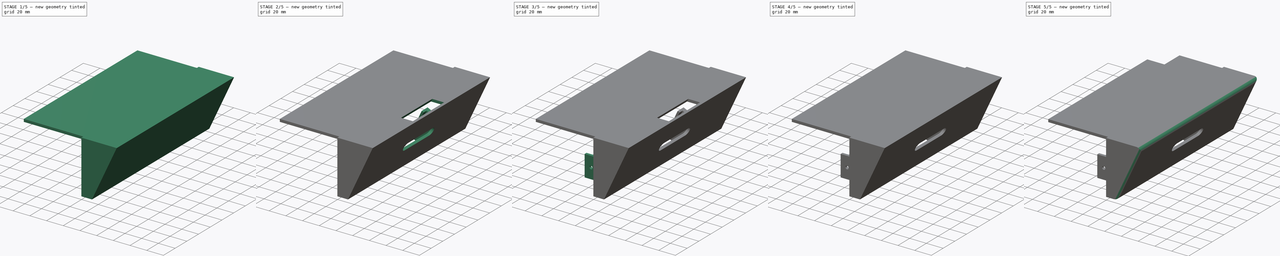
[diagram: build sequence overview — one tinted view per stage of 5, left to right]
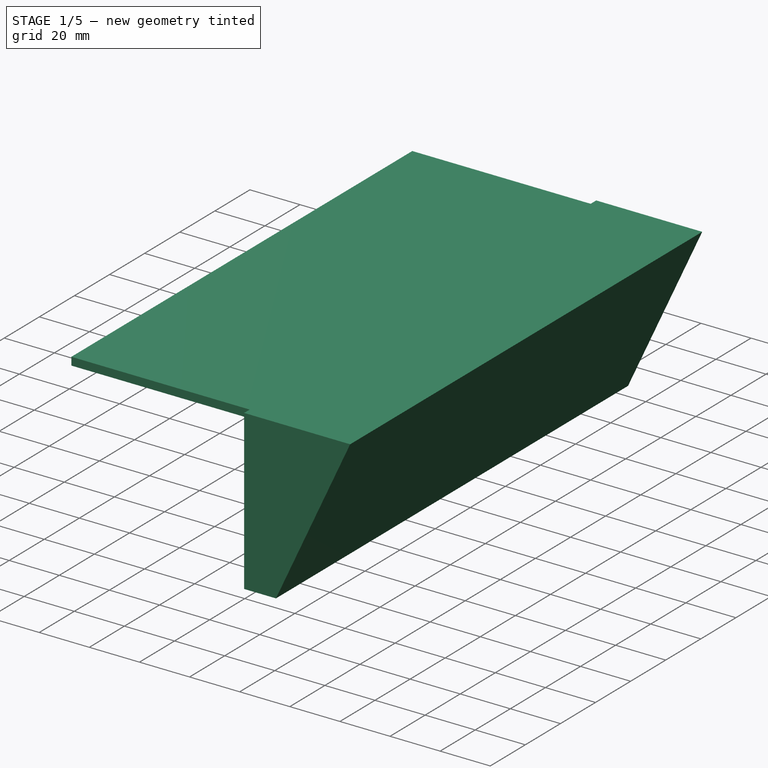
[diagram: stage 1 of 5 — iso view after this stage's code; geometry added in this stage tinted green]
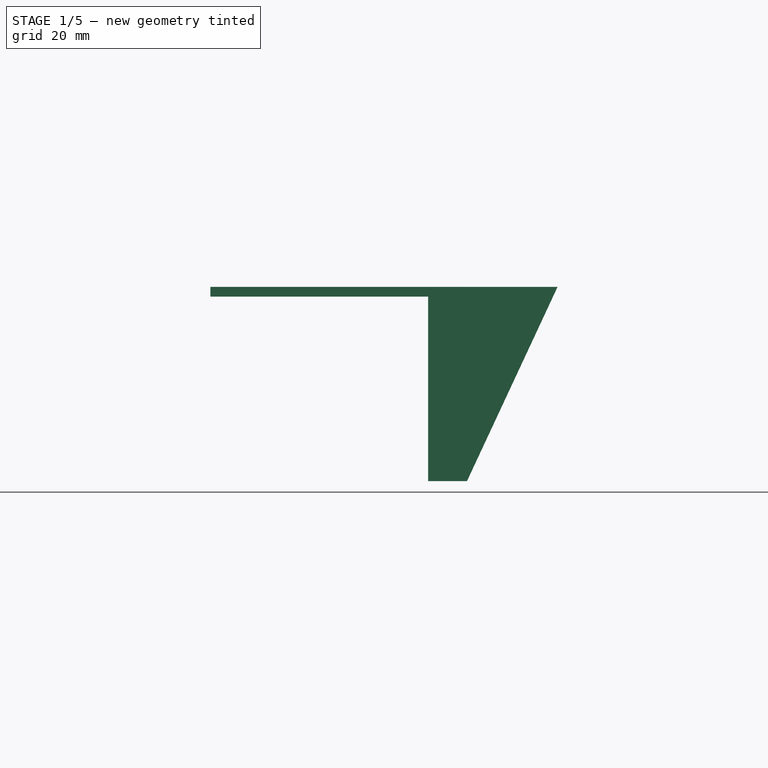
[diagram: stage 1 of 5 — front view after this stage's code; geometry added in this stage tinted green]
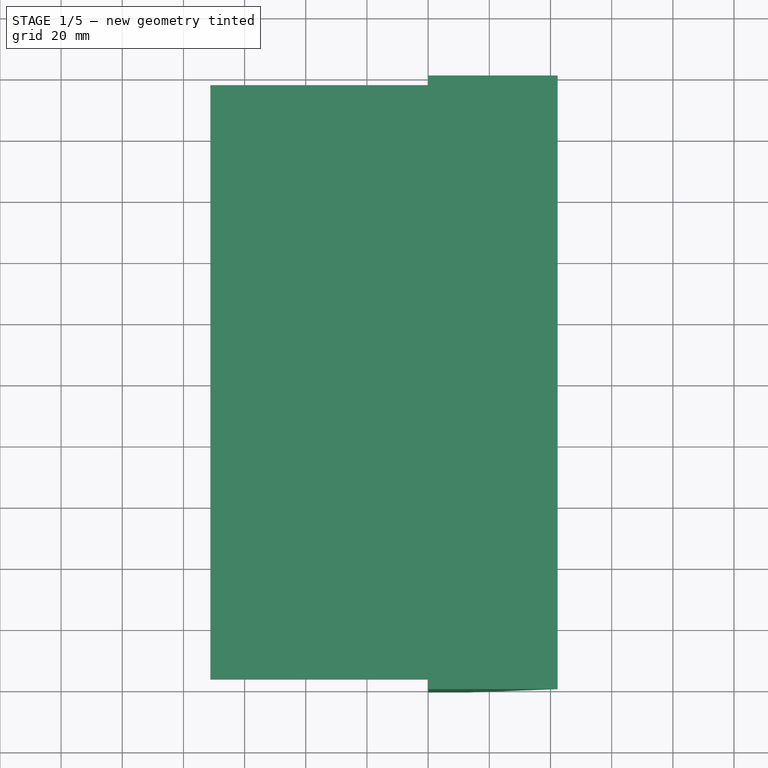
[diagram: stage 1 of 5 — top view after this stage's code; geometry added in this stage tinted green]
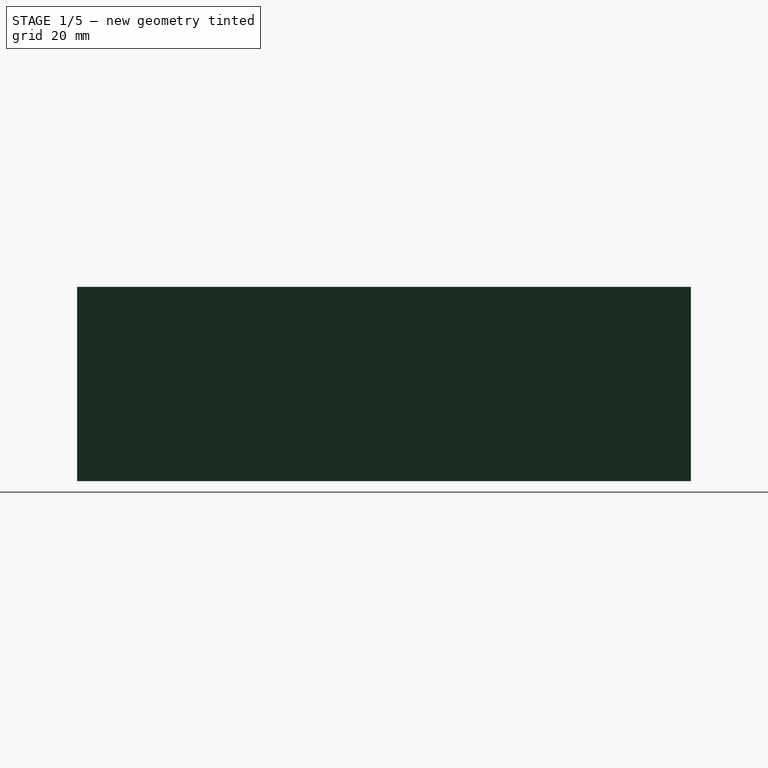
[diagram: stage 1 of 5 — right view after this stage's code; geometry added in this stage tinted green]
FCSTD DOCUMENT  (FreeCAD 0.20R27936 (Git))
Label: Bonnet
License: All rights reserved
LicenseURL: http://en.wikipedia.org/wiki/All_rights_reserved
objects: Sketcher::SketchObject×12, PartDesign::Pad×7, PartDesign::Pocket×5, PartDesign::Chamfer×3, PartDesign::Thickness×1, PartDesign::Fillet×1, PartDesign::Body×1
note: 47 computed .brp shape members not serialized (recipe doc carries the construction recipe); baked Part::Feature solids carry a one-line shape summary decoded from their .brp

FEATURE [Sketcher::SketchObject] Sketch
  FullyConstrained = true
  MapMode = 5
  Placement = pos=(0,0,0) rot=(1,0,0;1.5708rad)
  Support = -> [XZ_Plane]
  sketch-geometry (4):
    g0: LineSegment StartX=0 StartY=0 StartZ=0 EndX=12.7 EndY=0 EndZ=0
    g1: LineSegment StartX=12.7 StartY=0 StartZ=0 EndX=42.3105 EndY=63.5 EndZ=0
    g2: LineSegment StartX=42.3105 StartY=63.5 StartZ=0 EndX=0 EndY=63.5 EndZ=0
    g3: LineSegment StartX=0 StartY=63.5 StartZ=0 EndX=0 EndY=0 EndZ=0
  constraints (11):
    c: Coincident(g0,g-1)
    c: Horizontal(g0)
    c: Coincident(g1,g0)
    c: Coincident(g2,g1)
    c: PointOnObject(g2,g-2)
    c: Horizontal(g2)
    c: Coincident(g3,g2)
    c: Coincident(g3,g0)
    c: Angle(g1,g-1) = 2.00713
    c: Distance(g0) = 12.7
    c: Distance(g3) = 63.5
FEATURE [PartDesign::Pad] Pad
  Direction = (0,-1,-2e-16)
  Length = 200.66
  Length2 = 10.0076
  Midplane = true
  Placement = pos=(0,0,0) rot=(1,0,0;1.5708rad)
  Profile = -> Sketch
  ReferenceAxis = -> Sketch [N_Axis]
  Type = 0
FEATURE [PartDesign::Thickness] Thickness
  Base = -> Pad [Face4]
  BaseFeature = -> Pad
  Intersection = false
  Join = 0
  Mode = 0
  Reversed = true
  SupportTransform = false
  Value = 3.175
FEATURE [Sketcher::SketchObject] Sketch001
  ExternalGeometry = -> [Thickness]
  FullyConstrained = true
  MapMode = 5
  Placement = pos=(0,0,0) rot=(0.57735,-0.57735,-0.57735;2.0944rad)
  Support = -> [Thickness]
  sketch-geometry (4):
    g0: LineSegment StartX=-97.155 StartY=60.325 StartZ=0 EndX=97.155 EndY=60.325 EndZ=0
    g1: LineSegment StartX=97.155 StartY=60.325 StartZ=0 EndX=97.155 EndY=63.5 EndZ=0
    g2: LineSegment StartX=97.155 StartY=63.5 StartZ=0 EndX=-97.155 EndY=63.5 EndZ=0
    g3: LineSegment StartX=-97.155 StartY=63.5 StartZ=0 EndX=-97.155 EndY=60.325 EndZ=0
  constraints (10):
    c: Coincident(g0,g1)
    c: Coincident(g1,g2)
    c: Coincident(g2,g3)
    c: Coincident(g3,g0)
    c: Horizontal(g0)
    c: Horizontal(g2)
    c: Vertical(g3)
    c: Coincident(g0,g-4)
    c: PointOnObject(g1,g-5)
    c: Tangent(g1,g-3)
FEATURE [PartDesign::Pad] Pad001
  BaseFeature = -> Thickness
  Direction = (-1,0,0)
  Length = 71.1708
  Length2 = 10.0076
  Profile = -> Sketch001
  ReferenceAxis = -> Sketch001 [N_Axis]
  Refine = true
  Type = 0
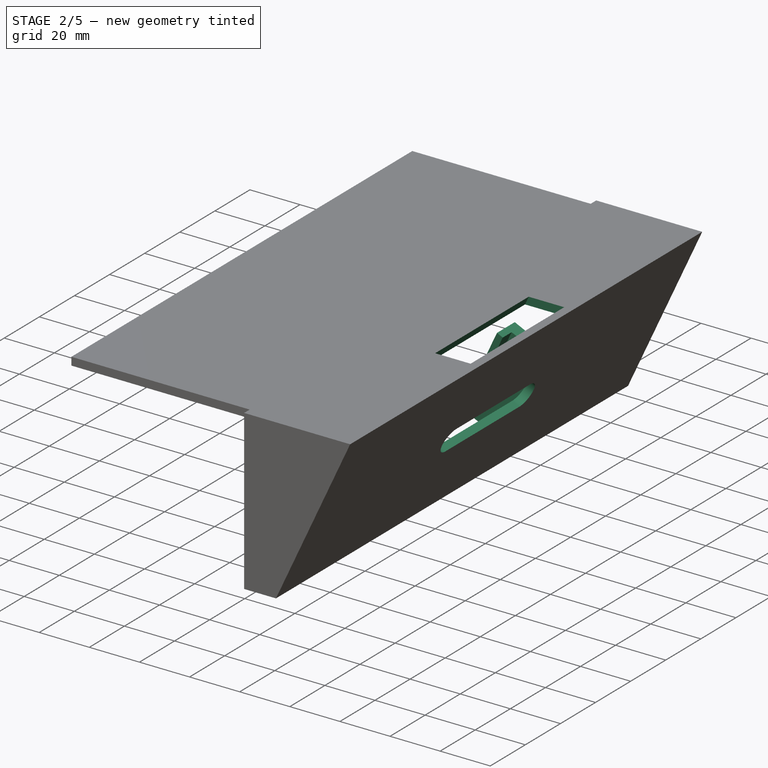
[diagram: stage 2 of 5 — iso view after this stage's code; geometry added in this stage tinted green]
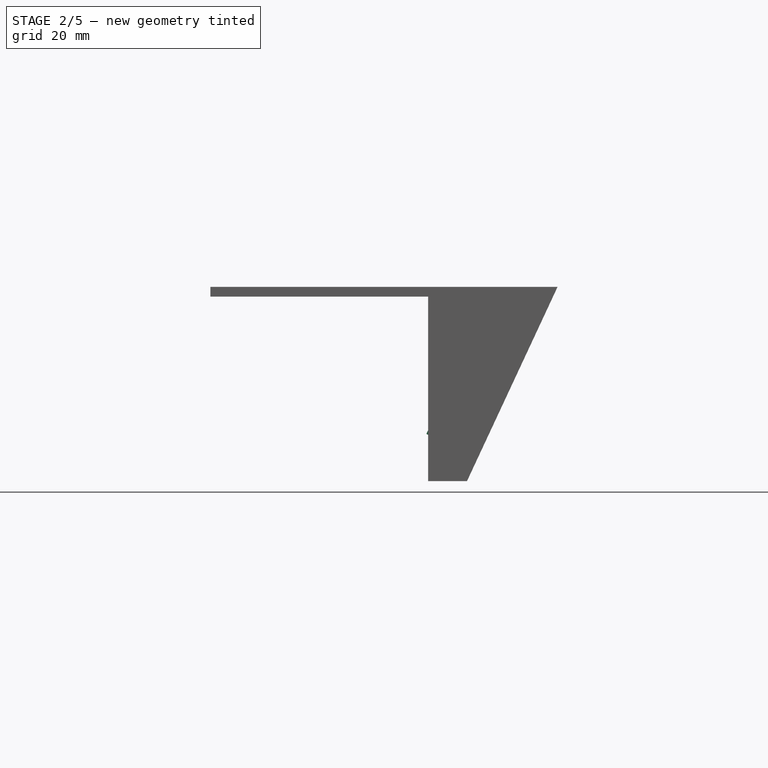
[diagram: stage 2 of 5 — front view after this stage's code; geometry added in this stage tinted green]
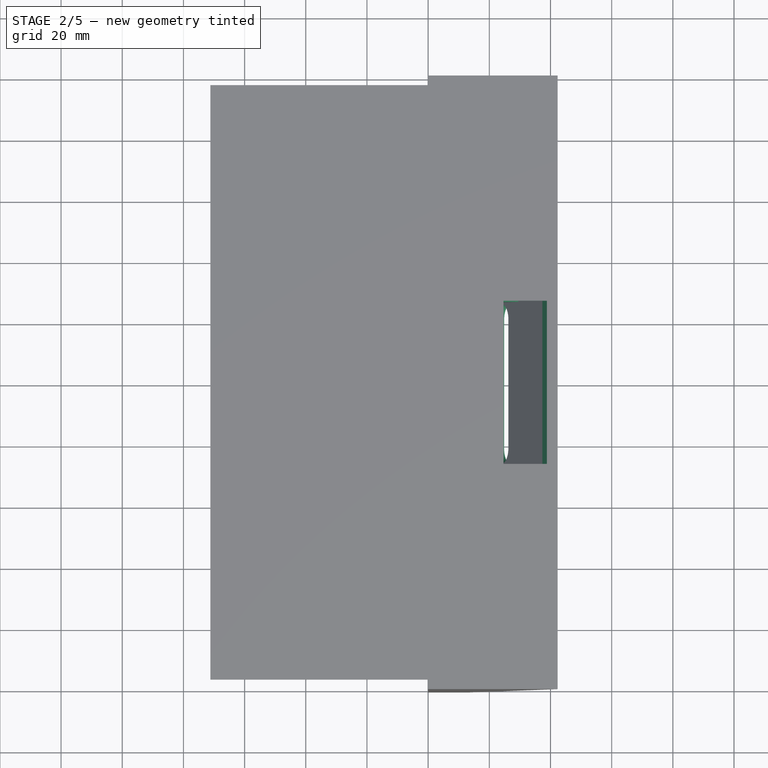
[diagram: stage 2 of 5 — top view after this stage's code; geometry added in this stage tinted green]
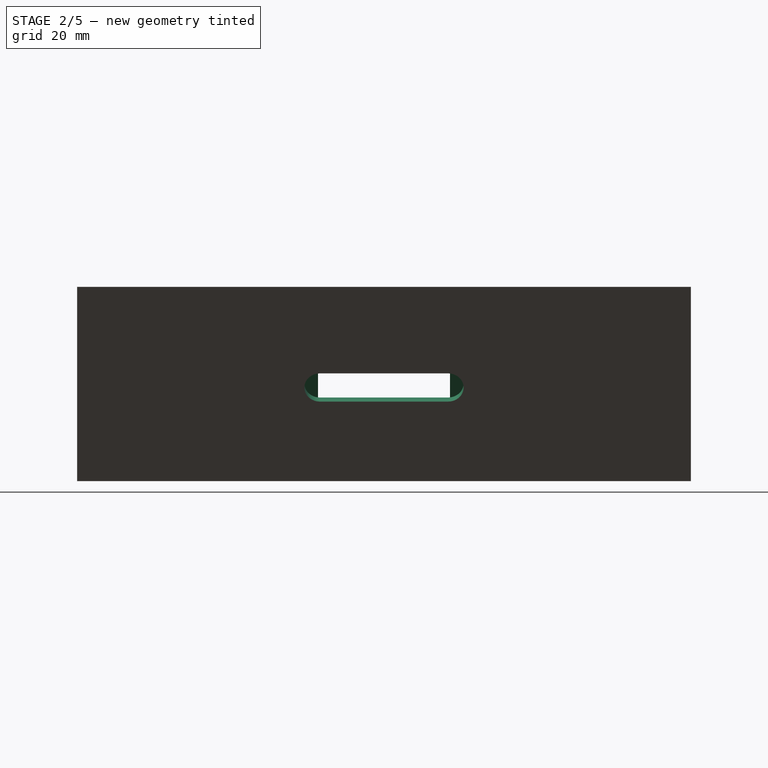
[diagram: stage 2 of 5 — right view after this stage's code; geometry added in this stage tinted green]
FEATURE [Sketcher::SketchObject] Sketch002
  ExternalGeometry = -> [Pad001]
  FullyConstrained = true
  MapMode = 5
  Placement = pos=(7.55417,8e-16,-3.52257) rot=(0.473306,-0.473306,-0.742942;1.86366rad)
  Support = -> [Pad001]
  sketch-geometry (8):
    g0: LineSegment StartX=-31.75 StartY=51.84 StartZ=0 EndX=-26.67 EndY=51.84 EndZ=0
    g1: LineSegment StartX=-26.67 StartY=51.84 StartZ=0 EndX=-26.67 EndY=13.74 EndZ=0
    g2: LineSegment StartX=-26.67 StartY=13.74 StartZ=0 EndX=-31.75 EndY=13.74 EndZ=0
    g3: LineSegment StartX=-31.75 StartY=13.74 StartZ=0 EndX=-31.75 EndY=51.84 EndZ=0
    g4: LineSegment StartX=26.67 StartY=51.84 StartZ=0 EndX=31.75 EndY=51.84 EndZ=0
    g5: LineSegment StartX=31.75 StartY=51.84 StartZ=0 EndX=31.75 EndY=13.74 EndZ=0
    g6: LineSegment StartX=31.75 StartY=13.74 StartZ=0 EndX=26.67 EndY=13.74 EndZ=0
    g7: LineSegment StartX=26.67 StartY=13.74 StartZ=0 EndX=26.67 EndY=51.84 EndZ=0
  constraints (22):
    c: Coincident(g0,g1)
    c: Coincident(g1,g2)
    c: Coincident(g2,g3)
    c: Coincident(g3,g0)
    c: Horizontal(g0)
    c: Vertical(g1)
    c: Vertical(g3)
    c: Coincident(g4,g5)
    c: Coincident(g5,g6)
    c: Coincident(g6,g7)
    c: Coincident(g7,g4)
    c: Horizontal(g4)
    c: Vertical(g5)
    c: Vertical(g7)
    c: Equal(g7,g1)
    c: Distance(g1,g6) = 53.34
    c: Tangent(g2,g6)
    c: Equal(g6,g2)
    c: Distance(g2) = 5.08
    c: Symmetric(g1,g6,g-2)
    c: Distance(g6,g-3) = 6.35
    c: Distance(g7) = 38.1
FEATURE [PartDesign::Pad] Pad002
  BaseFeature = -> Pad001
  Direction = (-0.906308,0,0.422618)
  Length = 12.827
  Length2 = 10.0076
  Profile = -> Sketch002
  ReferenceAxis = -> Sketch002 [N_Axis]
  Type = 0
FEATURE [Sketcher::SketchObject] Sketch003
  ExternalGeometry = -> [Pad002]
  FullyConstrained = true
  MapMode = 5
  Placement = pos=(-4.07104,1e-15,1.89836) rot=(0.473306,-0.473306,-0.742942;1.86366rad)
  Support = -> [Pad002]
  sketch-geometry (8):
    g0: LineSegment StartX=-31.75 StartY=51.84 StartZ=0 EndX=-21.59 EndY=51.84 EndZ=0
    g1: LineSegment StartX=-21.59 StartY=51.84 StartZ=0 EndX=-21.59 EndY=13.74 EndZ=0
    g2: LineSegment StartX=-21.59 StartY=13.74 StartZ=0 EndX=-31.75 EndY=13.74 EndZ=0
    g3: LineSegment StartX=-31.75 StartY=13.74 StartZ=0 EndX=-31.75 EndY=51.84 EndZ=0
    g4: LineSegment StartX=31.75 StartY=13.74 StartZ=0 EndX=21.59 EndY=13.74 EndZ=0
    g5: LineSegment StartX=21.59 StartY=13.74 StartZ=0 EndX=21.59 EndY=51.84 EndZ=0
    g6: LineSegment StartX=21.59 StartY=51.84 StartZ=0 EndX=31.75 EndY=51.84 EndZ=0
    g7: LineSegment StartX=31.75 StartY=51.84 StartZ=0 EndX=31.75 EndY=13.74 EndZ=0
  constraints (20):
    c: Coincident(g0,g1)
    c: Coincident(g1,g2)
    c: Coincident(g2,g3)
    c: Coincident(g3,g0)
    c: Horizontal(g0)
    c: Horizontal(g2)
    c: Vertical(g1)
    c: Vertical(g3)
    c: Coincident(g0,g-4)
    c: Coincident(g4,g5)
    c: Coincident(g5,g6)
    c: Coincident(g6,g7)
    c: Coincident(g7,g4)
    c: Vertical(g5)
    c: Vertical(g7)
    c: Coincident(g4,g-3)
    c: Tangent(g6,g0)
    c: Equal(g0,g6)
    c: Tangent(g4,g2)
    c: Distance(g2) = 10.16
FEATURE [PartDesign::Pad] Pad003
  BaseFeature = -> Pad002
  Direction = (-0.906308,2e-16,0.422618)
  Length = 2.54
  Length2 = 10.0076
  Profile = -> Sketch003
  ReferenceAxis = -> Sketch003 [N_Axis]
  Type = 0
FEATURE [Sketcher::SketchObject] Sketch004
  ExternalGeometry = -> [Pad003]
  FullyConstrained = true
  MapMode = 5
  Placement = pos=(5.80675,8.3e-15,12.4526) rot=(0.976296,0,-0.21644;3.14159rad)
  Support = -> [Pad003]
  sketch-geometry (4):
    g0: LineSegment StartX=8.33511 StartY=26.67 StartZ=0 EndX=-4.49189 EndY=26.67 EndZ=0
    g1: LineSegment StartX=-4.49189 StartY=26.67 StartZ=0 EndX=-4.49189 EndY=-26.67 EndZ=0
    g2: LineSegment StartX=-4.49189 StartY=-26.67 StartZ=0 EndX=8.33511 EndY=-26.67 EndZ=0
    g3: LineSegment StartX=8.33511 StartY=-26.67 StartZ=0 EndX=8.33511 EndY=26.67 EndZ=0
  constraints (10):
    c: Coincident(g0,g1)
    c: Coincident(g1,g2)
    c: Coincident(g2,g3)
    c: Coincident(g3,g0)
    c: Horizontal(g0)
    c: Horizontal(g2)
    c: Vertical(g1)
    c: Vertical(g3)
    c: Coincident(g0,g-3)
    c: Coincident(g1,g-4)
FEATURE [PartDesign::Pocket] Pocket
  BaseFeature = -> Pad003
  Direction = (0.422618,6e-16,0.906308)
  Length = 5.0038
  Length2 = 5.0038
  Profile = -> Sketch004
  ReferenceAxis = -> Sketch004 [N_Axis]
  Type = 1
FEATURE [Sketcher::SketchObject] Sketch005
  ExternalGeometry = -> [Pocket]
  FullyConstrained = true
  MapMode = 5
  Placement = pos=(7.55417,8e-16,-3.52257) rot=(0.473306,-0.473306,-0.742942;1.86366rad)
  Support = -> [Pocket]
  sketch-geometry (5):
    g0: ArcOfCircle CenterX=-20.955 CenterY=39.14 CenterZ=0 NormalX=0 NormalY=0 NormalZ=1 AngleXU=0 Radius=5.08 StartAngle=1.5708 EndAngle=4.71239
    g1: ArcOfCircle CenterX=20.955 CenterY=39.14 CenterZ=0 NormalX=0 NormalY=0 NormalZ=1 AngleXU=0 Radius=5.08 StartAngle=4.71239 EndAngle=7.85398
    g2: LineSegment StartX=-31.75 StartY=51.84 StartZ=0 EndX=31.75 EndY=51.84 EndZ=0
    g3: LineSegment StartX=20.955 StartY=44.22 StartZ=0 EndX=-20.955 EndY=44.22 EndZ=0
    g4: LineSegment StartX=-20.955 StartY=34.06 StartZ=0 EndX=20.955 EndY=34.06 EndZ=0
  constraints (11):
    c: Coincident(g2,g-4)
    c: Coincident(g2,g-3)
    c: Horizontal(g3)
    c: Tangent(g3,g1) = -1.5708
    c: Tangent(g4,g1) = -1.5708
    c: Tangent(g4,g0) = -1.5708
    c: Tangent(g3,g0) = -1.5708
    c: Symmetric(g0,g1,g-2)
    c: Distance(g1,g0) = 41.91
    c: Radius(g0) = 5.08
    c: Distance(g0,g2) = 12.7
FEATURE [PartDesign::Pocket] Pocket001
  BaseFeature = -> Pocket
  Direction = (0.906308,0,-0.422618)
  Length = 5.0038
  Length2 = 5.0038
  Profile = -> Sketch005
  ReferenceAxis = -> Sketch005 [N_Axis]
  Type = 0
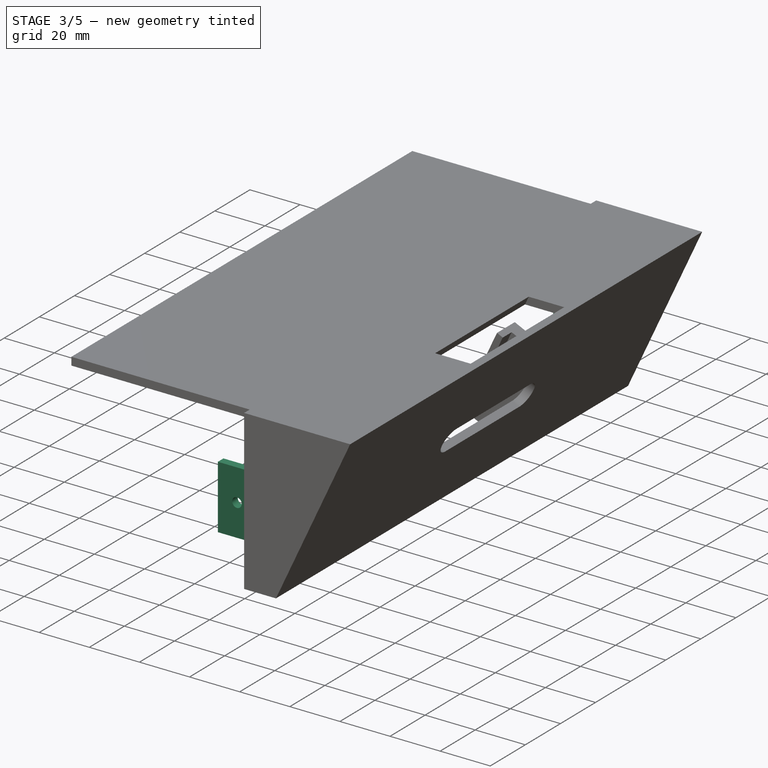
[diagram: stage 3 of 5 — iso view after this stage's code; geometry added in this stage tinted green]
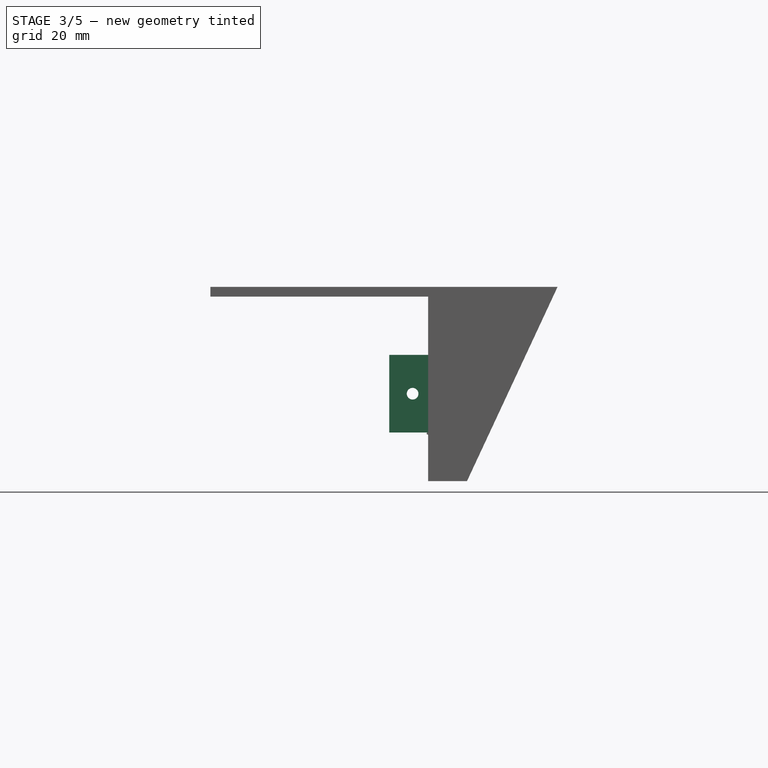
[diagram: stage 3 of 5 — front view after this stage's code; geometry added in this stage tinted green]
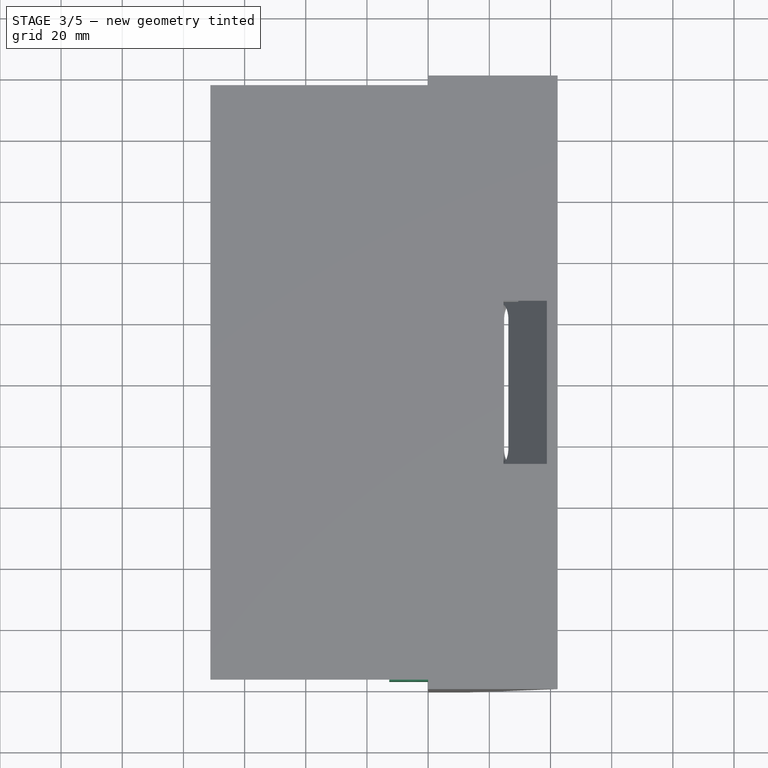
[diagram: stage 3 of 5 — top view after this stage's code; geometry added in this stage tinted green]
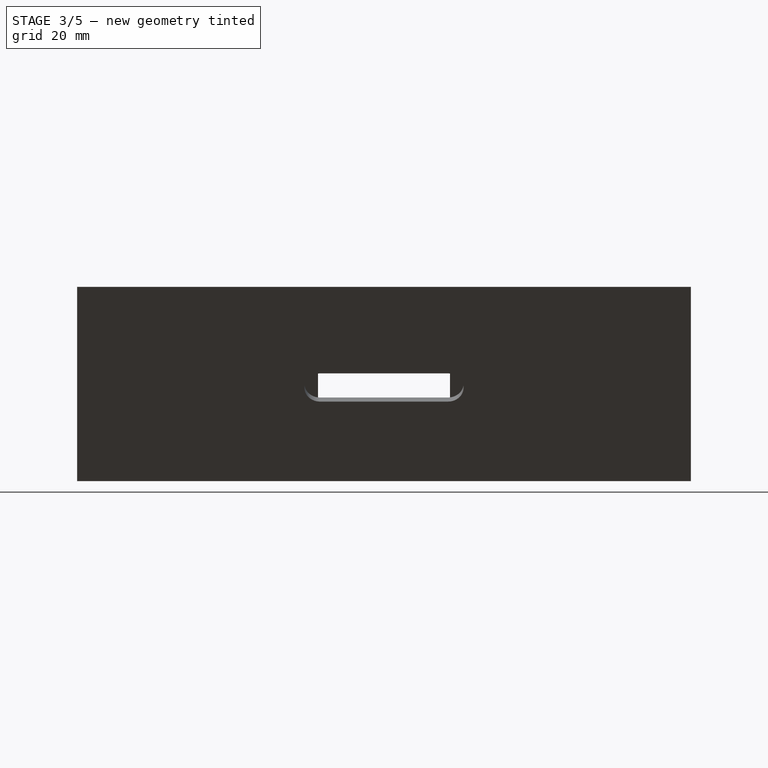
[diagram: stage 3 of 5 — right view after this stage's code; geometry added in this stage tinted green]
FEATURE [Sketcher::SketchObject] Sketch006
  ExternalGeometry = -> [Pocket001]
  FullyConstrained = true
  MapMode = 5
  Placement = pos=(0,0,0) rot=(0.57735,-0.57735,-0.57735;2.0944rad)
  Support = -> [Pocket001]
  sketch-geometry (10):
    g0: LineSegment StartX=97.155 StartY=15.875 StartZ=0 EndX=93.98 EndY=15.875 EndZ=0
    g1: LineSegment StartX=93.98 StartY=15.875 StartZ=0 EndX=93.98 EndY=41.275 EndZ=0
    g2: LineSegment StartX=93.98 StartY=41.275 StartZ=0 EndX=97.155 EndY=41.275 EndZ=0
    g3: LineSegment StartX=97.155 StartY=41.275 StartZ=0 EndX=97.155 EndY=15.875 EndZ=0
    g4: LineSegment StartX=-97.155 StartY=41.275 StartZ=0 EndX=-93.98 EndY=41.275 EndZ=0
    g5: LineSegment StartX=-93.98 StartY=41.275 StartZ=0 EndX=-93.98 EndY=15.875 EndZ=0
    g6: LineSegment StartX=-93.98 StartY=15.875 StartZ=0 EndX=-97.155 EndY=15.875 EndZ=0
    g7: LineSegment StartX=-97.155 StartY=15.875 StartZ=0 EndX=-97.155 EndY=41.275 EndZ=0
    g8: LineSegment StartX=0 StartY=28.575 StartZ=0 EndX=0 EndY=0 EndZ=0
    g9: LineSegment StartX=93.98 StartY=28.575 StartZ=0 EndX=-93.98 EndY=28.575 EndZ=0
  constraints (29):
    c: Coincident(g0,g1)
    c: Coincident(g1,g2)
    c: Coincident(g2,g3)
    c: Coincident(g3,g0)
    c: Horizontal(g0)
    c: Horizontal(g2)
    c: Vertical(g1)
    c: Vertical(g3)
    c: PointOnObject(g0,g-3)
    c: Coincident(g4,g5)
    c: Coincident(g5,g6)
    c: Coincident(g6,g7)
    c: Coincident(g7,g4)
    c: Horizontal(g4)
    c: Horizontal(g6)
    c: Vertical(g5)
    c: Vertical(g7)
    c: PointOnObject(g4,g-4)
    c: PointOnObject(g8,g-2)
    c: Coincident(g8,g-1)
    c: Distance(g8) = 28.575
    c: Horizontal(g9)
    c: PointOnObject(g8,g9)
    c: Symmetric(g1,g0,g9)
    c: Symmetric(g4,g5,g9)
    c: Equal(g5,g1)
    c: Equal(g2,g4)
    c: Distance(g5) = 25.4
    c: Distance(g4) = 3.175
FEATURE [PartDesign::Pad] Pad004
  BaseFeature = -> Pocket001
  Direction = (-1,0,0)
  Length = 10.0076
  Length2 = 10.0076
  Profile = -> Sketch006
  ReferenceAxis = -> Sketch006 [N_Axis]
  Type = 3
  UpToFace = -> Pocket001 [Face22]
FEATURE [Sketcher::SketchObject] Sketch007
  ExternalGeometry = -> [Pad004]
  FullyConstrained = true
  MapMode = 5
  Placement = pos=(0,0,0) rot=(0.57735,-0.57735,-0.57735;2.0944rad)
  Support = -> [Pad004]
  sketch-geometry (8):
    g0: LineSegment StartX=-93.98 StartY=41.275 StartZ=0 EndX=-97.155 EndY=41.275 EndZ=0
    g1: LineSegment StartX=-97.155 StartY=41.275 StartZ=0 EndX=-97.155 EndY=15.875 EndZ=0
    g2: LineSegment StartX=-97.155 StartY=15.875 StartZ=0 EndX=-93.98 EndY=15.875 EndZ=0
    g3: LineSegment StartX=-93.98 StartY=15.875 StartZ=0 EndX=-93.98 EndY=41.275 EndZ=0
    g4: LineSegment StartX=93.98 StartY=41.275 StartZ=0 EndX=97.155 EndY=41.275 EndZ=0
    g5: LineSegment StartX=97.155 StartY=41.275 StartZ=0 EndX=97.155 EndY=15.875 EndZ=0
    g6: LineSegment StartX=97.155 StartY=15.875 StartZ=0 EndX=93.98 EndY=15.875 EndZ=0
    g7: LineSegment StartX=93.98 StartY=15.875 StartZ=0 EndX=93.98 EndY=41.275 EndZ=0
  constraints (20):
    c: Coincident(g0,g1)
    c: Coincident(g1,g2)
    c: Coincident(g2,g3)
    c: Coincident(g3,g0)
    c: Horizontal(g0)
    c: Horizontal(g2)
    c: Vertical(g1)
    c: Vertical(g3)
    c: Coincident(g0,g-5)
    c: Coincident(g1,g-6)
    c: Coincident(g4,g5)
    c: Coincident(g5,g6)
    c: Coincident(g6,g7)
    c: Coincident(g7,g4)
    c: Horizontal(g4)
    c: Horizontal(g6)
    c: Vertical(g5)
    c: Vertical(g7)
    c: Coincident(g4,g-3)
    c: Coincident(g5,g-4)
FEATURE [PartDesign::Pad] Pad005
  BaseFeature = -> Pad004
  Direction = (-1,0,0)
  Length = 12.7
  Length2 = 10.0076
  Profile = -> Sketch007
  ReferenceAxis = -> Sketch007 [N_Axis]
  Type = 0
FEATURE [Sketcher::SketchObject] Sketch008
  ExternalGeometry = -> [Pad005]
  FullyConstrained = true
  MapMode = 5
  Placement = pos=(0,-97.155,0) rot=(1,0,0;1.5708rad)
  Support = -> [Pad005]
  sketch-geometry (2):
    g0: LineSegment StartX=-12.7 StartY=28.575 StartZ=0 EndX=-5.08 EndY=28.575 EndZ=0
    g1: Circle CenterX=-5.08 CenterY=28.575 CenterZ=0 NormalX=0 NormalY=0 NormalZ=1 AngleXU=0 Radius=1.905
  constraints (5):
    c: Horizontal(g0)
    c: Symmetric(g-3,g-3,g0)
    c: Coincident(g1,g0)
    c: Diameter(g1) = 3.81
    c: Distance(g1,g-4) = 5.08
FEATURE [PartDesign::Pocket] Pocket002
  BaseFeature = -> Pad005
  Direction = (0,1,-2e-16)
  Length = 5.0038
  Length2 = 5.0038
  Profile = -> Sketch008
  ReferenceAxis = -> Sketch008 [N_Axis]
  Type = 1
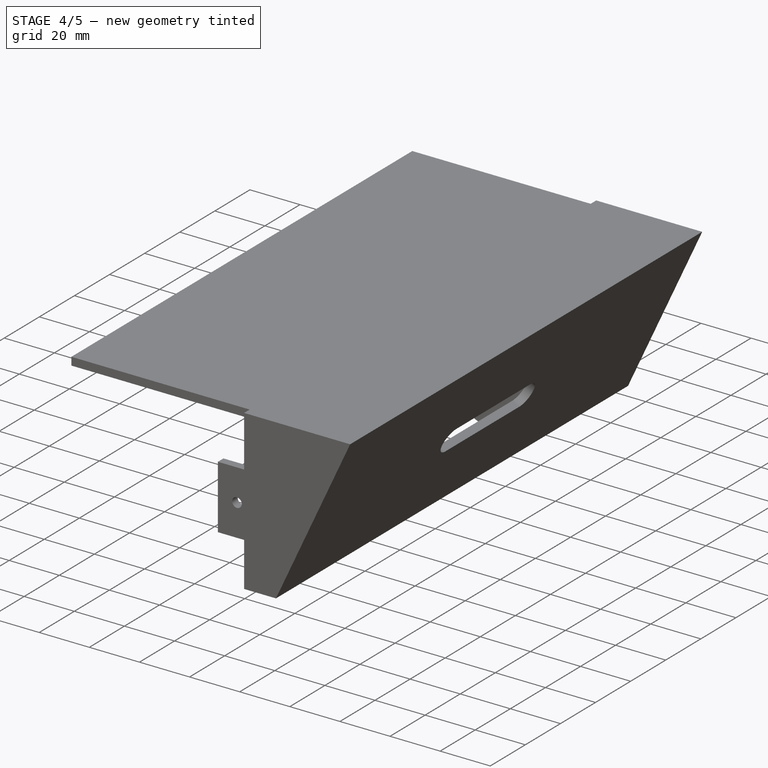
[diagram: stage 4 of 5 — iso view after this stage's code; geometry added in this stage tinted green]
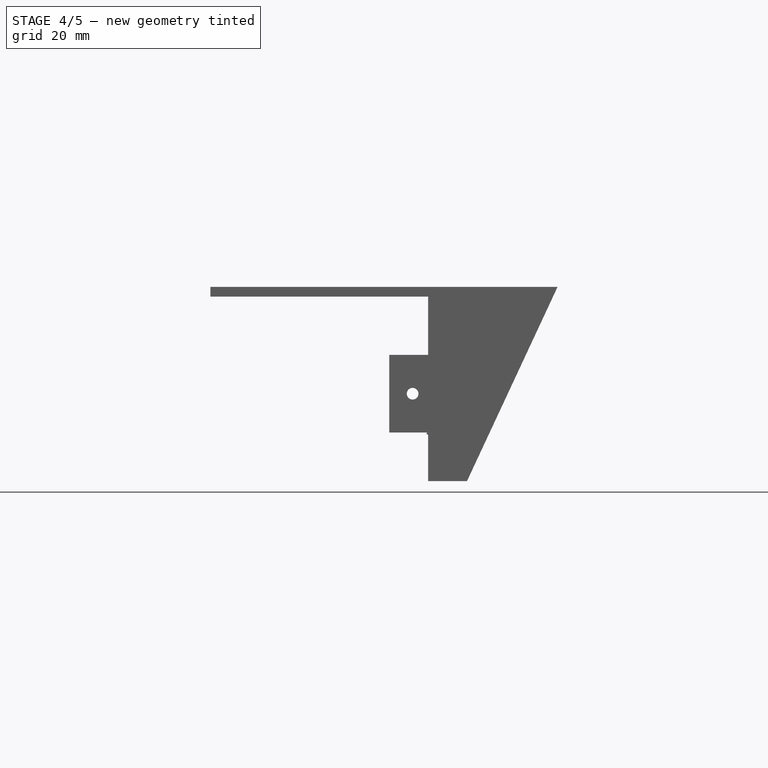
[diagram: stage 4 of 5 — front view after this stage's code; geometry added in this stage tinted green]
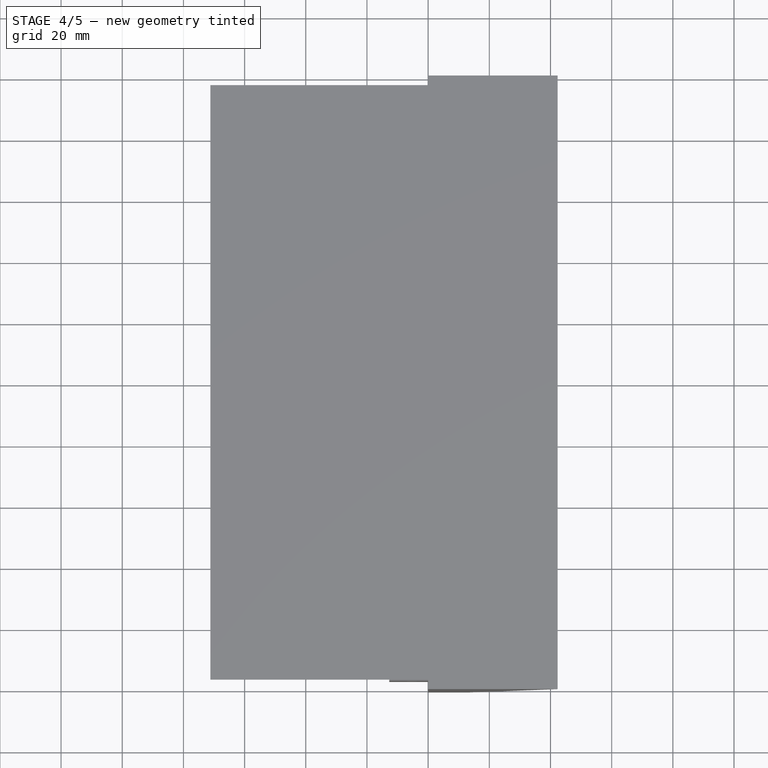
[diagram: stage 4 of 5 — top view after this stage's code; geometry added in this stage tinted green]
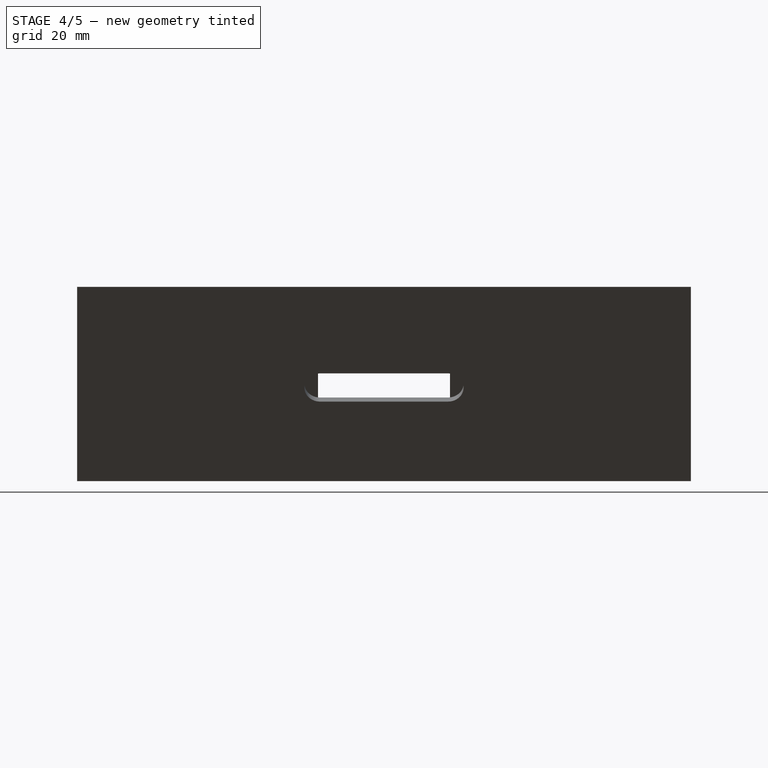
[diagram: stage 4 of 5 — right view after this stage's code; geometry added in this stage tinted green]
FEATURE [PartDesign::Chamfer] Chamfer
  Angle = 45
  Base = -> Pocket002 [Edge87,Edge83]
  BaseFeature = -> Pocket002
  ChamferType = 0
  FlipDirection = false
  Refine = true
  Size = 5.08
  Size2 = 1
  SupportTransform = false
  UseAllEdges = false
FEATURE [PartDesign::Chamfer] Chamfer001
  Angle = 45
  Base = -> Chamfer [Edge15,Edge12]
  BaseFeature = -> Chamfer
  ChamferType = 0
  FlipDirection = false
  Size = 3.17475
  Size2 = 1
  SupportTransform = false
  UseAllEdges = false
FEATURE [Sketcher::SketchObject] Sketch009
  ExternalGeometry = -> [Chamfer001]
  FullyConstrained = true
  MapMode = 5
  Placement = pos=(5.80675,-2.82e-14,12.4526) rot=(0.976296,0,-0.21644;3.14159rad)
  Support = -> [Chamfer001]
  sketch-geometry (4):
    g0: LineSegment StartX=8.33511 StartY=26.67 StartZ=0 EndX=-4.49189 EndY=26.67 EndZ=0
    g1: LineSegment StartX=-4.49189 StartY=26.67 StartZ=0 EndX=-4.49189 EndY=-26.67 EndZ=0
    g2: LineSegment StartX=-4.49189 StartY=-26.67 StartZ=0 EndX=8.33511 EndY=-26.67 EndZ=0
    g3: LineSegment StartX=8.33511 StartY=-26.67 StartZ=0 EndX=8.33511 EndY=26.67 EndZ=0
  constraints (10):
    c: Coincident(g0,g1)
    c: Coincident(g1,g2)
    c: Coincident(g2,g3)
    c: Coincident(g3,g0)
    c: Horizontal(g0)
    c: Horizontal(g2)
    c: Vertical(g1)
    c: Vertical(g3)
    c: Coincident(g0,g-3)
    c: Coincident(g1,g-4)
FEATURE [PartDesign::Pocket] Pocket003
  BaseFeature = -> Chamfer001
  Direction = (0.422618,-2.1e-15,0.906308)
  Length = 5.0038
  Length2 = 5.0038
  Profile = -> Sketch009
  ReferenceAxis = -> Sketch009 [N_Axis]
  Reversed = true
  Type = 1
FEATURE [Sketcher::SketchObject] Sketch010
  ExternalGeometry = -> [Pocket003]
  FullyConstrained = true
  MapMode = 5
  Placement = pos=(0,26.67,-1.78e-14) rot=(1,0,0;1.5708rad)
  Support = -> [Pocket003]
  sketch-geometry (4):
    g0: LineSegment StartX=38.8073 StartY=63.5 StartZ=0 EndX=37.3268 EndY=60.325 EndZ=0
    g1: LineSegment StartX=37.3268 StartY=60.325 StartZ=0 EndX=23.1738 EndY=60.325 EndZ=0
    g2: LineSegment StartX=23.1738 StartY=60.325 StartZ=0 EndX=24.6543 EndY=63.5 EndZ=0
    g3: LineSegment StartX=24.6543 StartY=63.5 StartZ=0 EndX=38.8073 EndY=63.5 EndZ=0
  constraints (8):
    c: Coincident(g0,g-4)
    c: Coincident(g0,g-4)
    c: Coincident(g1,g-3)
    c: Coincident(g2,g1)
    c: Coincident(g2,g-3)
    c: Coincident(g3,g2)
    c: Coincident(g3,g0)
    c: Coincident(g1,g0)
FEATURE [PartDesign::Pad] Pad006
  BaseFeature = -> Pocket003
  Direction = (0,-1,7e-16)
  Length = 10.0076
  Length2 = 10.0076
  Profile = -> Sketch010
  ReferenceAxis = -> Sketch010 [N_Axis]
  Refine = true
  Type = 3
  UpToFace = -> Pocket003 [Face17]
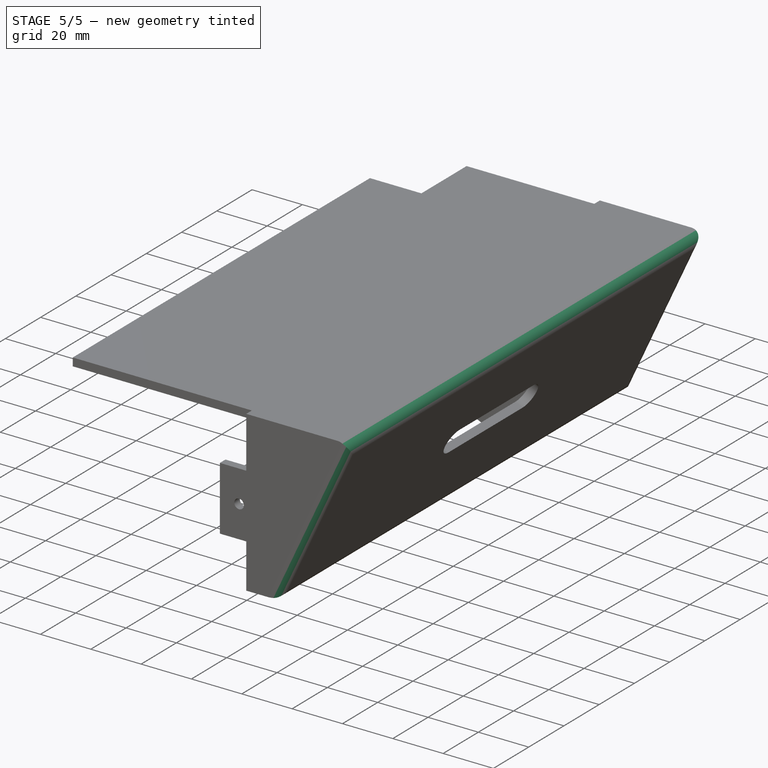
[diagram: stage 5 of 5 — iso view after this stage's code; geometry added in this stage tinted green]
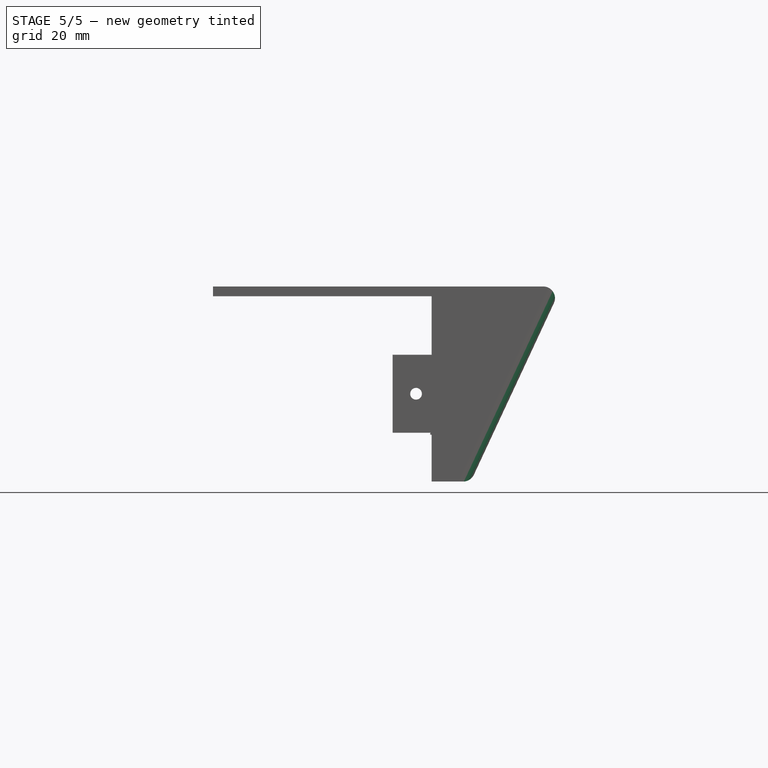
[diagram: stage 5 of 5 — front view after this stage's code; geometry added in this stage tinted green]
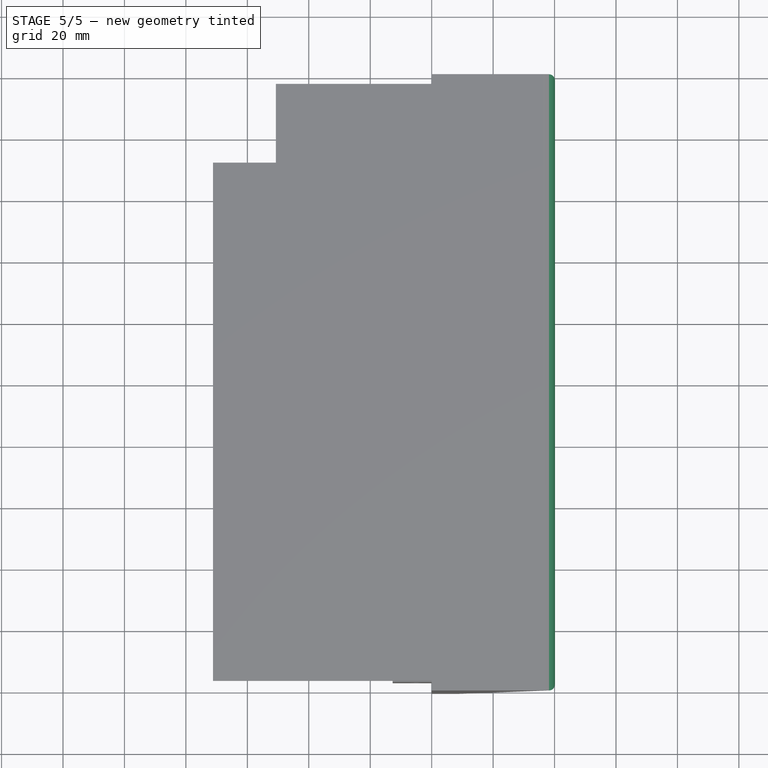
[diagram: stage 5 of 5 — top view after this stage's code; geometry added in this stage tinted green]
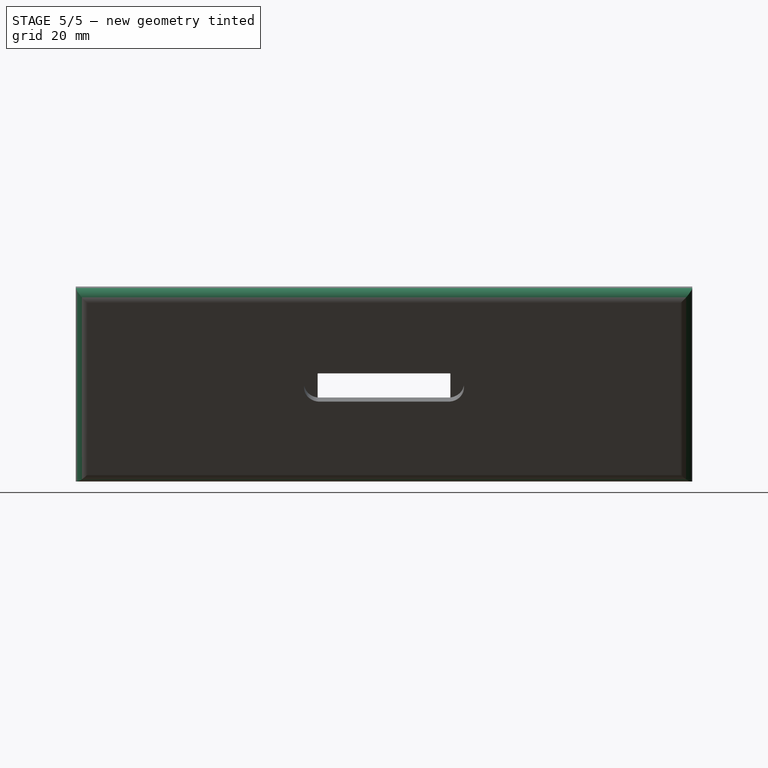
[diagram: stage 5 of 5 — right view after this stage's code; geometry added in this stage tinted green]
FEATURE [PartDesign::Chamfer] Chamfer002
  Angle = 45
  Base = -> Pad006 [Edge112,Edge107]
  BaseFeature = -> Pad006
  ChamferType = 0
  FlipDirection = false
  Size = 15.24
  Size2 = 1
  SupportTransform = false
  UseAllEdges = false
FEATURE [PartDesign::Fillet] Fillet
  Base = -> Chamfer002 [Edge132,Edge133,Edge67,Edge130]
  BaseFeature = -> Chamfer002
  Radius = 3.81
  SupportTransform = false
  UseAllEdges = false
FEATURE [Sketcher::SketchObject] Sketch011
  ExternalGeometry = -> [Fillet]
  FullyConstrained = true
  MapMode = 5
  Placement = pos=(3.49e-14,-6.5e-15,63.5) rot=(0,0,1;0rad)
  Support = -> [Fillet]
  sketch-geometry (4):
    g0: LineSegment StartX=-71.1708 StartY=97.155 StartZ=0 EndX=-50.7238 EndY=97.155 EndZ=0
    g1: LineSegment StartX=-50.7238 StartY=97.155 StartZ=0 EndX=-50.7238 EndY=71.501 EndZ=0
    g2: LineSegment StartX=-50.7238 StartY=71.501 StartZ=0 EndX=-71.1708 EndY=71.501 EndZ=0
    g3: LineSegment StartX=-71.1708 StartY=71.501 StartZ=0 EndX=-71.1708 EndY=97.155 EndZ=0
  constraints (11):
    c: Coincident(g0,g1)
    c: Coincident(g1,g2)
    c: Coincident(g2,g3)
    c: Coincident(g3,g0)
    c: Horizontal(g0)
    c: Horizontal(g2)
    c: Vertical(g1)
    c: Vertical(g3)
    c: Coincident(g0,g-3)
    c: Distance(g1) = 25.654
    c: Distance(g2) = 20.447
FEATURE [PartDesign::Pocket] Pocket004
  BaseFeature = -> Fillet
  Direction = (-5e-16,1e-16,-1)
  Length = 5.0038
  Length2 = 5.0038
  Profile = -> Sketch011
  ReferenceAxis = -> Sketch011 [N_Axis]
  Type = 0
FEATURE [PartDesign::Body] Body  label="Bonnet Body"
  Group = -> [Sketch,Pad,Thickness,Sketch001,Pad001,Sketch002,Pad002,Sketch003,Pad003,Sketch004,Pocket,Sketch005,Pocket001,Sketch006,Pad004,Sketch007,Pad005,Sketch008,Pocket002,Chamfer,Chamfer001,Sketch009,Pocket003,Sketch010,Pad006,Chamfer002,Fillet,Sketch011,Pocket004]
  Origin = -> Origin
  Tip = -> Pocket004
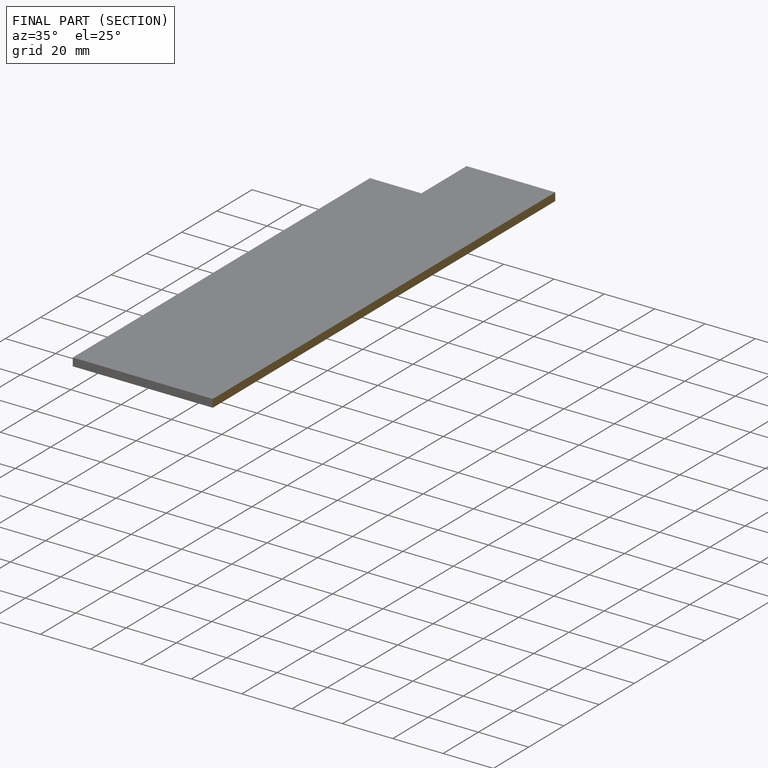
[diagram: finished part — half-section view (interior)]
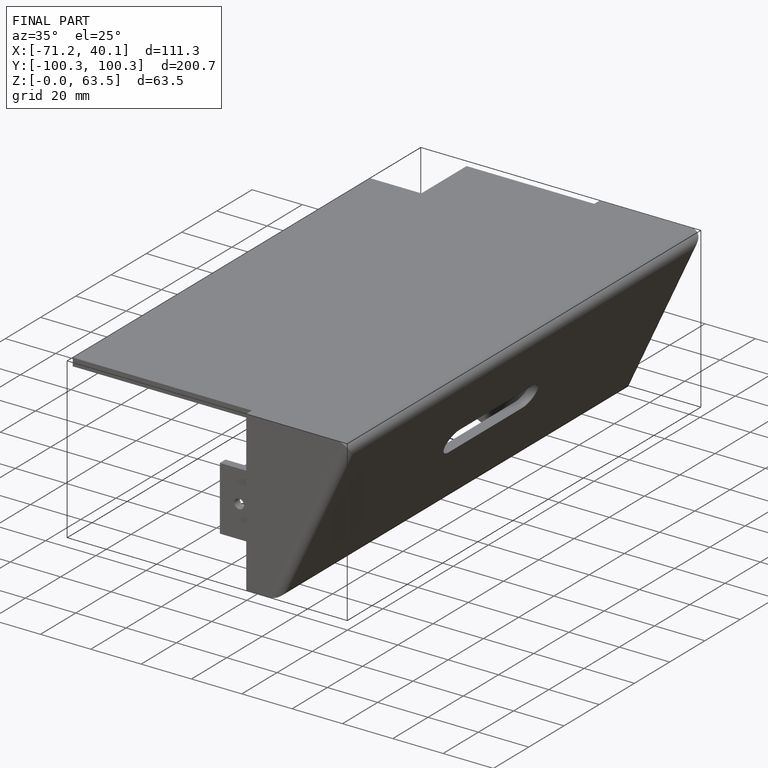
[diagram: finished part — iso view with bounding-box wireframe]
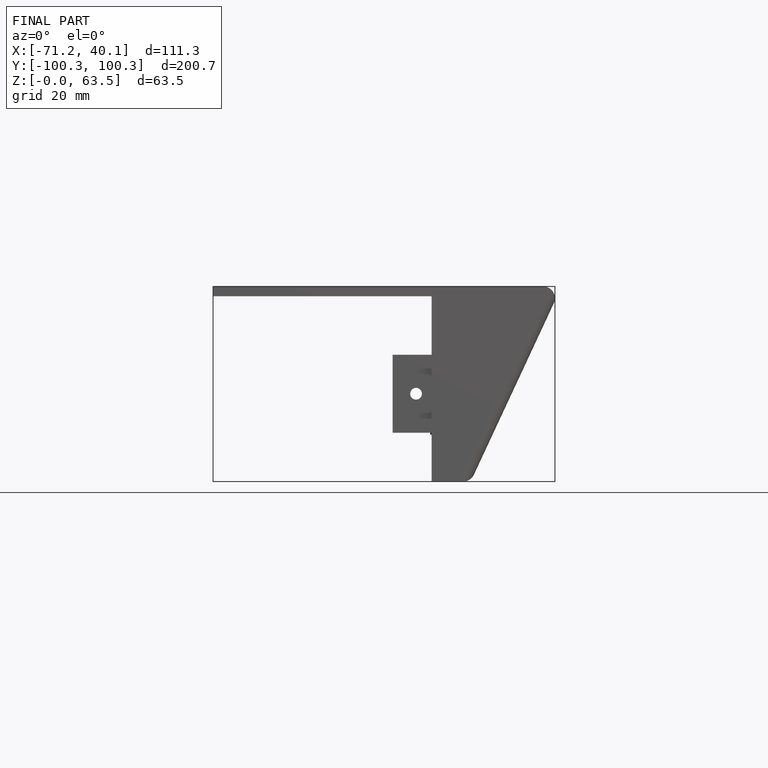
[diagram: finished part — front view with bounding-box wireframe]
